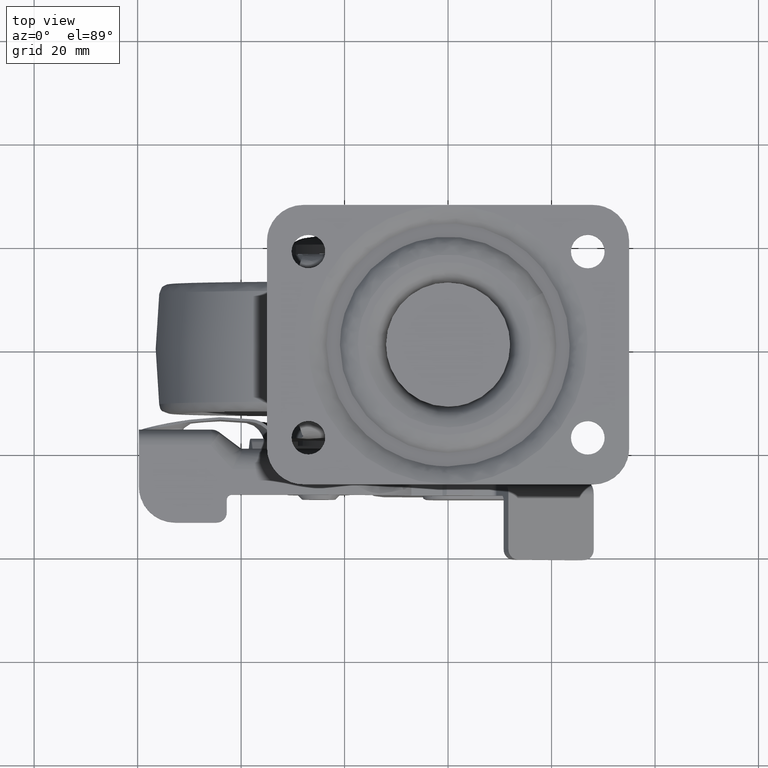
[diagram: clean part render]
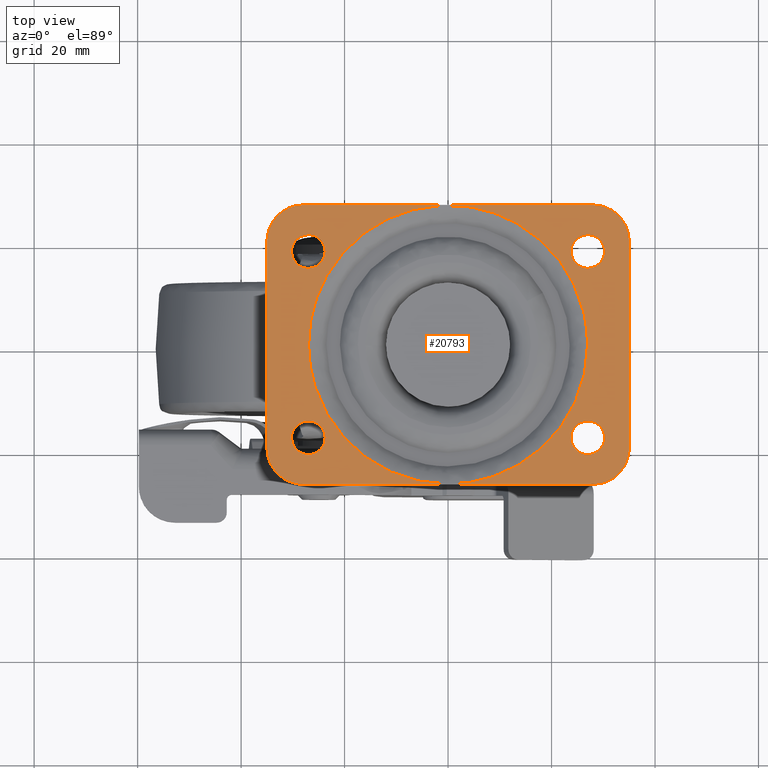
[diagram: same view with one face highlighted and labeled with its STEP entity id]
A machine part, top view. The second image highlights one B-rep face of the part: STEP entity #20793.
In plain terms, the highlighted face is a freeform B-spline surface patch.
Its self-contained STEP definition (entity closure, byte-faithful):
#18936=CARTESIAN_POINT('',(-29.098662013983120,20.481556148467931,2.411007E-011));
#18937=VERTEX_POINT('',#18936);
#18938=CARTESIAN_POINT('',(-30.250000000000000,18.0,0.0));
#18939=VERTEX_POINT('',#18938);
#18940=CARTESIAN_POINT('',(-29.098662013983120,20.481556148467931,2.411007E-011));
#18941=CARTESIAN_POINT('',(-29.435975121514989,20.197019072148791,2.134559E-011));
#18942=CARTESIAN_POINT('',(-29.861411885331290,19.653184710916801,1.606186E-011));
#18943=CARTESIAN_POINT('',(-30.188551572207150,18.764686713940691,7.429472E-012));
#18944=CARTESIAN_POINT('',(-30.250064970846822,18.264718474291040,2.571927E-012));
#18945=CARTESIAN_POINT('',(-30.250000000000000,18.0,0.0));
#18946=B_SPLINE_CURVE_WITH_KNOTS('',3,(#18940,#18941,#18942,#18943,#18944,#18945),.UNSPECIFIED.,.F.,.U.,(4,1,1,4),(0.000000032780604,1.323606410836319,2.029528632623908,2.823692085752946),.UNSPECIFIED.);
#18947=EDGE_CURVE('',#18937,#18939,#18946,.T.);
#18949=CARTESIAN_POINT('',(-26.999998023685411,14.750000000000600,0.0));
#18950=VERTEX_POINT('',#18949);
#18951=CARTESIAN_POINT('',(-30.250000000000000,18.0,0.0));
#18952=CARTESIAN_POINT('',(-30.250009369527781,17.787300965777661,0.0));
#18953=CARTESIAN_POINT('',(-30.197705253066719,17.255483680514409,0.0));
#18954=CARTESIAN_POINT('',(-29.953276100841521,16.572201316549091,0.0));
#18955=CARTESIAN_POINT('',(-29.560184505167779,15.968272788514740,0.0));
#18956=CARTESIAN_POINT('',(-29.099680306784681,15.484465543543280,0.0));
#18957=CARTESIAN_POINT('',(-28.520537887202899,15.097518226034770,0.0));
#18958=CARTESIAN_POINT('',(-27.797625543379802,14.818678978499131,0.0));
#18959=CARTESIAN_POINT('',(-27.292484887213021,14.749899991473630,0.0));
#18960=CARTESIAN_POINT('',(-26.999998023685411,14.750000000000600,0.0));
#18961=B_SPLINE_CURVE_WITH_KNOTS('',3,(#18951,#18952,#18953,#18954,#18955,#18956,#18957,#18958,#18959,#18960),.UNSPECIFIED.,.F.,.U.,(4,1,1,1,1,1,1,4),(0.000000130175467,0.638132101265308,1.595383198587425,2.153801844985761,2.791881960857556,3.589598457109945,4.227759827377444,5.105217283002371),.UNSPECIFIED.);
#18962=EDGE_CURVE('',#18939,#18950,#18961,.T.);
#18964=CARTESIAN_POINT('',(-23.750000000000000,18.0,0.0));
#18965=VERTEX_POINT('',#18964);
#18966=CARTESIAN_POINT('',(-26.999998023685411,14.750000000000600,0.0));
#18967=CARTESIAN_POINT('',(-26.707511638518518,14.749916395474340,0.0));
#18968=CARTESIAN_POINT('',(-26.228965239744490,14.815055345974690,0.0));
#18969=CARTESIAN_POINT('',(-25.503478534970618,15.084689072074809,0.0));
#18970=CARTESIAN_POINT('',(-24.918738735211701,15.465099771792261,0.0));
#18971=CARTESIAN_POINT('',(-24.421357598268070,15.987608902985000,0.0));
#18972=CARTESIAN_POINT('',(-24.078308945008938,16.529326794780200,0.0));
#18973=CARTESIAN_POINT('',(-23.818679715786899,17.202374695712901,0.0));
#18974=CARTESIAN_POINT('',(-23.749898858344821,17.707510889954889,0.0));
#18975=CARTESIAN_POINT('',(-23.750000000000000,18.0,0.0));
#18976=B_SPLINE_CURVE_WITH_KNOTS('',3,(#18966,#18967,#18968,#18969,#18970,#18971,#18972,#18973,#18974,#18975),.UNSPECIFIED.,.F.,.U.,(4,1,1,1,1,1,1,4),(0.000000132883857,0.877454849148513,1.435848134296763,2.313333049840735,2.951413440658941,3.589596891196172,4.227757981523486,5.105215055179643),.UNSPECIFIED.);
#18977=EDGE_CURVE('',#18950,#18965,#18976,.T.);
#18979=CARTESIAN_POINT('',(-24.642533730991470,20.237152114492190,-6.488299E-012));
#18980=VERTEX_POINT('',#18979);
#18981=CARTESIAN_POINT('',(-23.750000000000000,18.0,0.0));
#18982=CARTESIAN_POINT('',(-23.749970073258400,18.231323852694729,-6.708969E-013));
#18983=CARTESIAN_POINT('',(-23.802339721398191,18.719664242744201,-2.087206E-012));
#18984=CARTESIAN_POINT('',(-24.072348636473201,19.502709677085431,-4.358233E-012));
#18985=CARTESIAN_POINT('',(-24.412419689169489,19.994861619973641,-5.785597E-012));
#18986=CARTESIAN_POINT('',(-24.642533730991470,20.237152114492190,-6.488299E-012));
#18987=B_SPLINE_CURVE_WITH_KNOTS('',3,(#18981,#18982,#18983,#18984,#18985,#18986),.UNSPECIFIED.,.F.,.U.,(4,1,1,4),(0.000000048016924,0.693990344603692,1.465071409297912,2.467517016951442),.UNSPECIFIED.);
#18988=EDGE_CURVE('',#18965,#18980,#18987,.T.);
#19070=CARTESIAN_POINT('',(-27.000001976314579,21.249999999999389,0.0));
#19071=VERTEX_POINT('',#19070);
#19072=CARTESIAN_POINT('',(-27.000001976314579,21.249999999999389,0.0));
#19073=CARTESIAN_POINT('',(-27.356518502844640,21.250225261863669,4.095774E-012));
#19074=CARTESIAN_POINT('',(-28.116833163988979,21.123527920522729,1.283051E-011));
#19075=CARTESIAN_POINT('',(-28.790388938922209,20.742777522559280,2.056853E-011));
#19076=CARTESIAN_POINT('',(-29.098662013983120,20.481556148467931,2.411007E-011));
#19077=B_SPLINE_CURVE_WITH_KNOTS('',3,(#19072,#19073,#19074,#19075,#19076),.UNSPECIFIED.,.F.,.U.,(4,1,4),(0.000000046544645,1.069479835172767,2.281526819842900),.UNSPECIFIED.);
#19078=EDGE_CURVE('',#19071,#18937,#19077,.T.);
#19102=CARTESIAN_POINT('',(-24.642533730991470,20.237152114492190,-6.488299E-012));
#19103=CARTESIAN_POINT('',(-24.850502006177820,20.456467290193491,-5.915923E-012));
#19104=CARTESIAN_POINT('',(-25.263099812485201,20.784504189493369,-4.780358E-012));
#19105=CARTESIAN_POINT('',(-26.065969380748761,21.153877943759081,-2.570675E-012));
#19106=CARTESIAN_POINT('',(-26.642787019713939,21.250216907825621,-9.831387E-013));
#19107=CARTESIAN_POINT('',(-27.000001976314579,21.249999999999389,0.0));
#19108=B_SPLINE_CURVE_WITH_KNOTS('',3,(#19102,#19103,#19104,#19105,#19106,#19107),.UNSPECIFIED.,.F.,.U.,(4,1,1,4),(0.000000041691967,0.906719912648094,1.566123510374387,2.637701166660705),.UNSPECIFIED.);
#19109=EDGE_CURVE('',#18980,#19071,#19108,.T.);
#19140=CARTESIAN_POINT('',(-29.098662013983120,-15.518443851532060,2.411007E-011));
#19141=VERTEX_POINT('',#19140);
#19142=CARTESIAN_POINT('',(-30.250000000000000,-18.0,0.0));
#19143=VERTEX_POINT('',#19142);
#19144=CARTESIAN_POINT('',(-29.098662013983120,-15.518443851532060,2.411007E-011));
#19145=CARTESIAN_POINT('',(-29.345807513333440,-15.727270859242291,2.208117E-011));
#19146=CARTESIAN_POINT('',(-29.678780349831861,-16.107700559209650,1.838503E-011));
#19147=CARTESIAN_POINT('',(-30.122228806522781,-16.941498497305211,1.028409E-011));
#19148=CARTESIAN_POINT('',(-30.250568133515390,-17.558693553326350,4.287604E-012));
#19149=CARTESIAN_POINT('',(-30.250000000000000,-18.0,0.0));
#19150=B_SPLINE_CURVE_WITH_KNOTS('',3,(#19144,#19145,#19146,#19147,#19148,#19149),.UNSPECIFIED.,.F.,.U.,(4,1,1,4),(0.000000032780601,0.970644669832302,1.500085707788196,2.823692085752956),.UNSPECIFIED.);
#19151=EDGE_CURVE('',#19141,#19143,#19150,.T.);
#19153=CARTESIAN_POINT('',(-26.999998023685411,-21.249999999999400,0.0));
#19154=VERTEX_POINT('',#19153);
#19155=CARTESIAN_POINT('',(-30.250000000000000,-18.0,0.0));
#19156=CARTESIAN_POINT('',(-30.250189828656602,-18.345685374985120,0.0));
#19157=CARTESIAN_POINT('',(-30.164327565055270,-18.877321482790180,0.0));
#19158=CARTESIAN_POINT('',(-29.859330765155150,-19.588640095612799,0.0));
#19159=CARTESIAN_POINT('',(-29.405490925143042,-20.250633665652849,0.0));
#19160=CARTESIAN_POINT('',(-28.800640050369651,-20.746962856875658,0.0));
#19161=CARTESIAN_POINT('',(-27.956983273839271,-21.145890065077761,0.0));
#19162=CARTESIAN_POINT('',(-27.398896762059330,-21.250351134171900,0.0));
#19163=CARTESIAN_POINT('',(-26.999998023685411,-21.249999999999400,0.0));
#19164=B_SPLINE_CURVE_WITH_KNOTS('',3,(#19155,#19156,#19157,#19158,#19159,#19160,#19161,#19162,#19163),.UNSPECIFIED.,.F.,.U.,(4,1,1,1,1,1,4),(0.000000130178187,1.036988564667084,1.595383198589589,2.313334055526160,3.430066163216022,3.908685942198614,5.105217283002332),.UNSPECIFIED.);
#19165=EDGE_CURVE('',#19143,#19154,#19164,.T.);
#19167=CARTESIAN_POINT('',(-23.750000000000000,-18.0,0.0));
#19168=VERTEX_POINT('',#19167);
#19169=CARTESIAN_POINT('',(-26.999998023685411,-21.249999999999400,0.0));
#19170=CARTESIAN_POINT('',(-26.654325157627870,-21.250173482347510,0.0));
#19171=CARTESIAN_POINT('',(-25.989698139765281,-21.142959983774219,0.0));
#19172=CARTESIAN_POINT('',(-25.197413560756619,-20.744187037367290,0.0));
#19173=CARTESIAN_POINT('',(-24.631029585284551,-20.255442694325989,0.0));
#19174=CARTESIAN_POINT('',(-24.236540503340880,-19.749954656948869,0.0));
#19175=CARTESIAN_POINT('',(-23.864049450148858,-19.010172237932650,0.0));
#19176=CARTESIAN_POINT('',(-23.749642217159231,-18.398893144839331,0.0));
#19177=CARTESIAN_POINT('',(-23.750000000000000,-18.0,0.0));
#19178=B_SPLINE_CURVE_WITH_KNOTS('',3,(#19169,#19170,#19171,#19172,#19173,#19174,#19175,#19176,#19177),.UNSPECIFIED.,.F.,.U.,(4,1,1,1,1,1,4),(0.000000132885914,1.036988114522464,1.994257466603097,2.632361918074051,3.270510655247755,3.908684235775294,5.105215055179595),.UNSPECIFIED.);
#19179=EDGE_CURVE('',#19154,#19168,#19178,.T.);
#19181=CARTESIAN_POINT('',(-24.642533730991470,-15.762847885507810,-6.488299E-012));
#19182=VERTEX_POINT('',#19181);
#19183=CARTESIAN_POINT('',(-23.750000000000000,-18.0,0.0));
#19184=CARTESIAN_POINT('',(-23.749691217957700,-17.614412216913571,-1.118301E-012));
#19185=CARTESIAN_POINT('',(-23.898198580976690,-16.792187689257268,-3.502957E-012));
#19186=CARTESIAN_POINT('',(-24.341313808972000,-16.079488684971839,-5.569962E-012));
#19187=CARTESIAN_POINT('',(-24.642533730991470,-15.762847885507810,-6.488299E-012));
#19188=B_SPLINE_CURVE_WITH_KNOTS('',3,(#19183,#19184,#19185,#19186,#19187),.UNSPECIFIED.,.F.,.U.,(4,1,4),(0.000000048017326,1.156659548464160,2.467517016951447),.UNSPECIFIED.);
#19189=EDGE_CURVE('',#19168,#19182,#19188,.T.);
#19269=CARTESIAN_POINT('',(-27.000001976314579,-14.750000000000600,0.0));
#19270=VERTEX_POINT('',#19269);
#19271=CARTESIAN_POINT('',(-27.000001976314579,-14.750000000000600,0.0));
#19272=CARTESIAN_POINT('',(-27.261424441707469,-14.749943368808330,3.003303E-012));
#19273=CARTESIAN_POINT('',(-27.808020724700711,-14.816274535109979,9.282774E-012));
#19274=CARTESIAN_POINT('',(-28.522383700906801,-15.095733623609791,1.748960E-011));
#19275=CARTESIAN_POINT('',(-28.935354155752929,-15.380320788946911,2.223394E-011));
#19276=CARTESIAN_POINT('',(-29.098662013983120,-15.518443851532060,2.411007E-011));
#19277=B_SPLINE_CURVE_WITH_KNOTS('',3,(#19271,#19272,#19273,#19274,#19275,#19276),.UNSPECIFIED.,.F.,.U.,(4,1,1,4),(0.000000046544931,0.784277085109643,1.639844173134363,2.281526819842903),.UNSPECIFIED.);
#19278=EDGE_CURVE('',#19270,#19141,#19277,.T.);
#19301=CARTESIAN_POINT('',(-24.642533730991470,-15.762847885507810,-6.488299E-012));
#19302=CARTESIAN_POINT('',(-24.925978875126329,-15.463570453116761,-5.708193E-012));
#19303=CARTESIAN_POINT('',(-25.472214348900660,-15.073311437917861,-4.204827E-012));
#19304=CARTESIAN_POINT('',(-26.313134517435259,-14.797551460180721,-1.890419E-012));
#19305=CARTESIAN_POINT('',(-26.780198198625229,-14.749978489500959,-6.049511E-013));
#19306=CARTESIAN_POINT('',(-27.000001976314579,-14.750000000000600,0.0));
#19307=B_SPLINE_CURVE_WITH_KNOTS('',3,(#19301,#19302,#19303,#19304,#19305,#19306),.UNSPECIFIED.,.F.,.U.,(4,1,1,4),(0.000000041691413,1.236428381829834,1.978275885379313,2.637701166660706),.UNSPECIFIED.);
#19308=EDGE_CURVE('',#19182,#19270,#19307,.T.);
#19339=CARTESIAN_POINT('',(24.901337986016880,20.481556148467931,2.411007E-011));
#19340=VERTEX_POINT('',#19339);
#19341=CARTESIAN_POINT('',(23.750000000000000,18.0,0.0));
#19342=VERTEX_POINT('',#19341);
#19343=CARTESIAN_POINT('',(24.901337986016880,20.481556148467931,2.411007E-011));
#19344=CARTESIAN_POINT('',(24.564022460995879,20.197018604657728,2.134559E-011));
#19345=CARTESIAN_POINT('',(24.138589120352410,19.653185514379992,1.606187E-011));
#19346=CARTESIAN_POINT('',(23.811448734057080,18.764685928792229,7.429464E-012));
#19347=CARTESIAN_POINT('',(23.749934318764939,18.264720624976022,2.571948E-012));
#19348=CARTESIAN_POINT('',(23.750000000000000,18.0,0.0));
#19349=B_SPLINE_CURVE_WITH_KNOTS('',3,(#19343,#19344,#19345,#19346,#19347,#19348),.UNSPECIFIED.,.F.,.U.,(4,1,1,4),(0.000000032779804,1.323606410835987,2.029528632623781,2.823692085752959),.UNSPECIFIED.);
#19350=EDGE_CURVE('',#19340,#19342,#19349,.T.);
#19352=CARTESIAN_POINT('',(27.000001976314589,14.750000000000600,0.0));
#19353=VERTEX_POINT('',#19352);
#19354=CARTESIAN_POINT('',(23.750000000000000,18.0,0.0));
#19355=CARTESIAN_POINT('',(23.749785742482722,17.654313070926399,0.0));
#19356=CARTESIAN_POINT('',(23.835685242893430,17.122675416487159,0.0));
#19357=CARTESIAN_POINT('',(24.119629024145329,16.460392464895872,0.0));
#19358=CARTESIAN_POINT('',(24.439792598384791,15.968266902210610,0.0));
#19359=CARTESIAN_POINT('',(24.900318657338751,15.484464106681830,0.0));
#19360=CARTESIAN_POINT('',(25.479462560658700,15.097518527033399,0.0));
#19361=CARTESIAN_POINT('',(26.202374749242381,14.818678973484490,0.0));
#19362=CARTESIAN_POINT('',(26.707514224890890,14.749900529780071,0.0));
#19363=CARTESIAN_POINT('',(27.000001976314589,14.750000000000600,0.0));
#19364=B_SPLINE_CURVE_WITH_KNOTS('',3,(#19354,#19355,#19356,#19357,#19358,#19359,#19360,#19361,#19362,#19363),.UNSPECIFIED.,.F.,.U.,(4,1,1,1,1,1,1,4),(0.000000130172612,1.036988564662533,1.595383198585566,2.153801844984451,2.791881960856835,3.589598457109791,4.227759827377511,5.105217283002343),.UNSPECIFIED.);
#19365=EDGE_CURVE('',#19342,#19353,#19364,.T.);
#19367=CARTESIAN_POINT('',(30.250000000000000,18.0,0.0));
#19368=VERTEX_POINT('',#19367);
#19369=CARTESIAN_POINT('',(27.000001976314589,14.750000000000600,0.0));
#19370=CARTESIAN_POINT('',(27.345682761433391,14.749817411182120,0.0));
#19371=CARTESIAN_POINT('',(27.877327830376590,14.835660365938519,0.0));
#19372=CARTESIAN_POINT('',(28.637733930806601,15.161656110361641,0.0));
#19373=CARTESIAN_POINT('',(29.333759524556630,15.664476262515540,0.0));
#19374=CARTESIAN_POINT('',(29.864196628146981,16.379655906437598,0.0));
#19375=CARTESIAN_POINT('',(30.181293176133469,17.202391288927831,0.0));
#19376=CARTESIAN_POINT('',(30.250097775256510,17.707513800674519,0.0));
#19377=CARTESIAN_POINT('',(30.250000000000000,18.0,0.0));
#19378=B_SPLINE_CURVE_WITH_KNOTS('',3,(#19369,#19370,#19371,#19372,#19373,#19374,#19375,#19376,#19377),.UNSPECIFIED.,.F.,.U.,(4,1,1,1,1,1,4),(0.000000132886476,1.036988114523123,1.595382504896750,2.472852463183898,3.589596891197049,4.227757981524018,5.105215055179590),.UNSPECIFIED.);
#19379=EDGE_CURVE('',#19353,#19368,#19378,.T.);
#19381=CARTESIAN_POINT('',(29.357466269008530,20.237152114492190,-6.488299E-012));
#19382=VERTEX_POINT('',#19381);
#19383=CARTESIAN_POINT('',(30.250000000000000,18.0,0.0));
#19384=CARTESIAN_POINT('',(30.250029856586529,18.231324300618649,-6.708982E-013));
#19385=CARTESIAN_POINT('',(30.197660239921699,18.719663100274609,-2.087203E-012));
#19386=CARTESIAN_POINT('',(29.927651257859399,19.502710449078549,-4.358235E-012));
#19387=CARTESIAN_POINT('',(29.587580694526672,19.994861516565180,-5.785596E-012));
#19388=CARTESIAN_POINT('',(29.357466269008530,20.237152114492190,-6.488299E-012));
#19389=B_SPLINE_CURVE_WITH_KNOTS('',3,(#19383,#19384,#19385,#19386,#19387,#19388),.UNSPECIFIED.,.F.,.U.,(4,1,1,4),(0.000000048017676,0.693990344604234,1.465071409298134,2.467517016951434),.UNSPECIFIED.);
#19390=EDGE_CURVE('',#19368,#19382,#19389,.T.);
#19471=CARTESIAN_POINT('',(26.999998023685428,21.249999999999389,0.0));
#19472=VERTEX_POINT('',#19471);
#19473=CARTESIAN_POINT('',(26.999998023685428,21.249999999999389,0.0));
#19474=CARTESIAN_POINT('',(26.738573166154520,21.250056779422149,3.003331E-012));
#19475=CARTESIAN_POINT('',(26.287067377070102,21.195212425445391,8.190372E-012));
#19476=CARTESIAN_POINT('',(25.564579379021300,20.948529683029019,1.649054E-011));
#19477=CARTESIAN_POINT('',(25.137181723022749,20.681155010884840,2.140062E-011));
#19478=CARTESIAN_POINT('',(24.901337986016880,20.481556148467931,2.411007E-011));
#19479=B_SPLINE_CURVE_WITH_KNOTS('',3,(#19473,#19474,#19475,#19476,#19477,#19478),.UNSPECIFIED.,.F.,.U.,(4,1,1,4),(0.000000046544629,0.784277085109396,1.354640644363460,2.281526819842901),.UNSPECIFIED.);
#19480=EDGE_CURVE('',#19472,#19340,#19479,.T.);
#19504=CARTESIAN_POINT('',(29.357466269008530,20.237152114492190,-6.488299E-012));
#19505=CARTESIAN_POINT('',(29.149489756148640,20.456459216243552,-5.915900E-012));
#19506=CARTESIAN_POINT('',(28.693502140134669,20.819097464550730,-4.660917E-012));
#19507=CARTESIAN_POINT('',(27.879156536899071,21.168919024054031,-2.419649E-012));
#19508=CARTESIAN_POINT('',(27.302242190031329,21.250121078032009,-8.318463E-013));
#19509=CARTESIAN_POINT('',(26.999998023685428,21.249999999999389,0.0));
#19510=B_SPLINE_CURVE_WITH_KNOTS('',3,(#19504,#19505,#19506,#19507,#19508,#19509),.UNSPECIFIED.,.F.,.U.,(4,1,1,4),(0.000000041691718,0.906719912648074,1.730981295650681,2.637701166660704),.UNSPECIFIED.);
#19511=EDGE_CURVE('',#19382,#19472,#19510,.T.);
#19542=CARTESIAN_POINT('',(24.901337986016880,-15.518443851532069,2.410980E-011));
#19543=VERTEX_POINT('',#19542);
#19544=CARTESIAN_POINT('',(23.750000000000000,-18.0,0.0));
#19545=VERTEX_POINT('',#19544);
#19546=CARTESIAN_POINT('',(24.901337986016880,-15.518443851532069,2.410980E-011));
#19547=CARTESIAN_POINT('',(24.564049665951281,-15.802980071688960,2.134536E-011));
#19548=CARTESIAN_POINT('',(24.101519596560120,-16.394101533586621,1.560226E-011));
#19549=CARTESIAN_POINT('',(23.797604546830360,-17.294093684134641,6.858301E-012));
#19550=CARTESIAN_POINT('',(23.749994923483172,-17.794114012731882,2.000305E-012));
#19551=CARTESIAN_POINT('',(23.750000000000000,-18.0,0.0));
#19552=B_SPLINE_CURVE_WITH_KNOTS('',3,(#19546,#19547,#19548,#19549,#19550,#19551),.UNSPECIFIED.,.F.,.U.,(4,1,1,4),(0.000000032782069,1.323606410836959,2.206009512406765,2.823692085752946),.UNSPECIFIED.);
#19553=EDGE_CURVE('',#19543,#19545,#19552,.T.);
#19555=CARTESIAN_POINT('',(27.000001976314589,-21.249999999999389,0.0));
#19556=VERTEX_POINT('',#19555);
#19557=CARTESIAN_POINT('',(23.750000000000000,-18.0,0.0));
#19558=CARTESIAN_POINT('',(23.749539109395830,-18.425517321268259,0.0));
#19559=CARTESIAN_POINT('',(23.866513435822320,-19.010111152781871,0.0));
#19560=CARTESIAN_POINT('',(24.238257720426361,-19.748346059224520,0.0));
#19561=CARTESIAN_POINT('',(24.610774591370909,-20.238013777739130,0.0));
#19562=CARTESIAN_POINT('',(25.116550573767789,-20.674280522653920,0.0));
#19563=CARTESIAN_POINT('',(25.627977368913911,-20.963983828308709,0.0));
#19564=CARTESIAN_POINT('',(26.255558981979359,-21.188540772674010,0.0));
#19565=CARTESIAN_POINT('',(26.707509342070122,-21.250107669726422,0.0));
#19566=CARTESIAN_POINT('',(27.000001976314589,-21.249999999999389,0.0));
#19567=B_SPLINE_CURVE_WITH_KNOTS('',3,(#19557,#19558,#19559,#19560,#19561,#19562,#19563,#19564,#19565,#19566),.UNSPECIFIED.,.F.,.U.,(4,1,1,1,1,1,1,4),(0.000000130174017,1.276304901481341,1.754930481418421,2.472853536968516,3.110959513207545,3.749140048125455,4.227759827377623,5.105217283002375),.UNSPECIFIED.);
#19568=EDGE_CURVE('',#19545,#19556,#19567,.T.);
#19570=CARTESIAN_POINT('',(30.250000000000000,-18.0,0.0));
#19571=VERTEX_POINT('',#19570);
#19572=CARTESIAN_POINT('',(27.000001976314589,-21.249999999999389,0.0));
#19573=CARTESIAN_POINT('',(27.345675269564850,-21.250197662489999,0.0));
#19574=CARTESIAN_POINT('',(28.010311827942282,-21.142935297518719,0.0));
#19575=CARTESIAN_POINT('',(28.802542296396830,-20.744166622463592,0.0));
#19576=CARTESIAN_POINT('',(29.450010658485830,-20.185713915961699,0.0));
#19577=CARTESIAN_POINT('',(29.883294867451959,-19.570418447118371,0.0));
#19578=CARTESIAN_POINT('',(30.181311612339059,-18.797618903095529,0.0));
#19579=CARTESIAN_POINT('',(30.250101356567910,-18.292488888214621,0.0));
#19580=CARTESIAN_POINT('',(30.250000000000000,-18.0,0.0));
#19581=B_SPLINE_CURVE_WITH_KNOTS('',3,(#19572,#19573,#19574,#19575,#19576,#19577,#19578,#19579,#19580),.UNSPECIFIED.,.F.,.U.,(4,1,1,1,1,1,4),(0.000000132882087,1.036988114519651,1.994257466601198,2.632361918072711,3.589596891195971,4.227757981523316,5.105215055179643),.UNSPECIFIED.);
#19582=EDGE_CURVE('',#19556,#19571,#19581,.T.);
#19584=CARTESIAN_POINT('',(29.357466269008530,-15.762847885507810,-6.488306E-012));
#19585=VERTEX_POINT('',#19584);
#19586=CARTESIAN_POINT('',(30.250000000000000,-18.0,0.0));
#19587=CARTESIAN_POINT('',(30.250309667202629,-17.614411436126410,-1.118304E-012));
#19588=CARTESIAN_POINT('',(30.101802139097291,-16.792188037043971,-3.502960E-012));
#19589=CARTESIAN_POINT('',(29.658684485442201,-16.079488542710489,-5.569969E-012));
#19590=CARTESIAN_POINT('',(29.357466269008530,-15.762847885507810,-6.488306E-012));
#19591=B_SPLINE_CURVE_WITH_KNOTS('',3,(#19586,#19587,#19588,#19589,#19590),.UNSPECIFIED.,.F.,.U.,(4,1,4),(0.000000048017035,1.156659548464136,2.467517016951446),.UNSPECIFIED.);
#19592=EDGE_CURVE('',#19571,#19585,#19591,.T.);
#19672=CARTESIAN_POINT('',(26.999998023685428,-14.750000000000600,0.0));
#19673=VERTEX_POINT('',#19672);
#19674=CARTESIAN_POINT('',(26.999998023685428,-14.750000000000600,0.0));
#19675=CARTESIAN_POINT('',(26.643486060418510,-14.749799515815431,4.095675E-012));
#19676=CARTESIAN_POINT('',(25.883158763495640,-14.876434103648030,1.283046E-011));
#19677=CARTESIAN_POINT('',(25.209614340643320,-15.257235800922290,2.056826E-011));
#19678=CARTESIAN_POINT('',(24.901337986016880,-15.518443851532069,2.410980E-011));
#19679=B_SPLINE_CURVE_WITH_KNOTS('',3,(#19674,#19675,#19676,#19677,#19678),.UNSPECIFIED.,.F.,.U.,(4,1,4),(0.000000046545003,1.069479835172948,2.281526819842915),.UNSPECIFIED.);
#19680=EDGE_CURVE('',#19673,#19543,#19679,.T.);
#19704=CARTESIAN_POINT('',(29.357466269008530,-15.762847885507810,-6.488306E-012));
#19705=CARTESIAN_POINT('',(29.111737999354482,-15.503586212710010,-5.812005E-012));
#19706=CARTESIAN_POINT('',(28.578116261436239,-15.101103030838351,-4.343353E-012));
#19707=CARTESIAN_POINT('',(27.741839060785800,-14.803081048030910,-2.041721E-012));
#19708=CARTESIAN_POINT('',(27.219797703725810,-14.749981408437250,-6.049405E-013));
#19709=CARTESIAN_POINT('',(26.999998023685428,-14.750000000000600,0.0));
#19710=B_SPLINE_CURVE_WITH_KNOTS('',3,(#19704,#19705,#19706,#19707,#19708,#19709),.UNSPECIFIED.,.F.,.U.,(4,1,1,4),(0.000000041692346,1.071577697969752,1.978275885379452,2.637701166660695),.UNSPECIFIED.);
#19711=EDGE_CURVE('',#19585,#19673,#19710,.T.);
#20216=CARTESIAN_POINT('',(-23.463721929436009,13.285945149702910,-3.123845E-012));
#20217=VERTEX_POINT('',#20216);
#20228=CARTESIAN_POINT('',(-26.964101615137750,0.0,0.0));
#20229=VERTEX_POINT('',#20228);
#20230=CARTESIAN_POINT('',(-26.964101615137750,0.0,0.0));
#20231=CARTESIAN_POINT('',(-26.964376938501260,1.808939636004065,-3.977022E-013));
#20232=CARTESIAN_POINT('',(-26.649763442268071,4.920159724618062,-1.099967E-012));
#20233=CARTESIAN_POINT('',(-25.394706249793259,9.390316009306750,-2.155488E-012));
#20234=CARTESIAN_POINT('',(-24.212527946907400,11.963762168178199,-2.789771E-012));
#20235=CARTESIAN_POINT('',(-23.463721929436009,13.285945149702910,-3.123845E-012));
#20236=B_SPLINE_CURVE_WITH_KNOTS('',3,(#20230,#20231,#20232,#20233,#20234,#20235),.UNSPECIFIED.,.F.,.U.,(4,1,1,4),(7.957814E-009,5.426765222866234,9.334024984201815,13.892509590251670),.UNSPECIFIED.);
#20237=EDGE_CURVE('',#20229,#20217,#20236,.T.);
#20239=CARTESIAN_POINT('',(-0.000001402923582,-26.964101615137711,0.0));
#20240=VERTEX_POINT('',#20239);
#20241=CARTESIAN_POINT('',(-0.000001402923582,-26.964101615137711,0.0));
#20242=CARTESIAN_POINT('',(-1.985439990888531,-26.964507047240410,0.0));
#20243=CARTESIAN_POINT('',(-4.742754721083084,-26.658115685390779,0.0));
#20244=CARTESIAN_POINT('',(-8.632966910792739,-25.607124260436290,0.0));
#20245=CARTESIAN_POINT('',(-11.819626857589490,-24.344152055624701,0.0));
#20246=CARTESIAN_POINT('',(-15.697495591673130,-22.100148080679489,0.0));
#20247=CARTESIAN_POINT('',(-18.997357248189040,-19.306297736449810,0.0));
#20248=CARTESIAN_POINT('',(-21.433749017359379,-16.446040568537569,0.0));
#20249=CARTESIAN_POINT('',(-23.517223352291978,-13.389636559732219,0.0));
#20250=CARTESIAN_POINT('',(-25.145690872058790,-10.052986893748599,0.0));
#20251=CARTESIAN_POINT('',(-26.589161285570189,-5.294164031171176,0.0));
#20252=CARTESIAN_POINT('',(-26.964568613071052,-2.095754925146269,0.0));
#20253=CARTESIAN_POINT('',(-26.964101615137750,0.0,0.0));
#20254=B_SPLINE_CURVE_WITH_KNOTS('',3,(#20241,#20242,#20243,#20244,#20245,#20246,#20247,#20248,#20249,#20250,#20251,#20252,#20253),.UNSPECIFIED.,.F.,.U.,(4,1,1,1,1,1,1,1,1,1,4),(0.000000079796962,5.956190109911624,8.272495562527290,12.077852870231190,16.214124881631861,21.673932515717571,24.982927923463929,27.464661263130449,32.759084043836907,36.068086878578058,42.355177424549339),.UNSPECIFIED.);
#20255=EDGE_CURVE('',#20240,#20229,#20254,.T.);
#20257=CARTESIAN_POINT('',(26.964101615137750,0.0,0.0));
#20258=VERTEX_POINT('',#20257);
#20259=CARTESIAN_POINT('',(26.964101615137750,0.0,0.0));
#20260=CARTESIAN_POINT('',(26.964196906333949,-1.378753020237646,0.0));
#20261=CARTESIAN_POINT('',(26.786024911120322,-3.695013746422065,0.0));
#20262=CARTESIAN_POINT('',(26.098448991208659,-6.992823373121217,0.0));
#20263=CARTESIAN_POINT('',(25.222872739291020,-9.670747320750015,0.0));
#20264=CARTESIAN_POINT('',(23.961347870477731,-12.493345128448819,0.0));
#20265=CARTESIAN_POINT('',(22.330063255017119,-15.253288735553760,0.0));
#20266=CARTESIAN_POINT('',(20.213747353964621,-17.947963540003592,0.0));
#20267=CARTESIAN_POINT('',(17.980325324539191,-20.167687025323669,0.0));
#20268=CARTESIAN_POINT('',(15.343839804408290,-22.264642439264190,0.0));
#20269=CARTESIAN_POINT('',(12.360435907463531,-24.065290197666759,0.0));
#20270=CARTESIAN_POINT('',(8.952721273388463,-25.513664736737041,0.0));
#20271=CARTESIAN_POINT('',(4.908212797346167,-26.646323660188330,0.0));
#20272=CARTESIAN_POINT('',(1.875117793442987,-26.964434291919471,0.0));
#20273=CARTESIAN_POINT('',(-0.000001402923582,-26.964101615137711,0.0));
#20274=B_SPLINE_CURVE_WITH_KNOTS('',3,(#20259,#20260,#20261,#20262,#20263,#20264,#20265,#20266,#20267,#20268,#20269,#20270,#20271,#20272,#20273),.UNSPECIFIED.,.F.,.U.,(4,1,1,1,1,1,1,1,1,1,1,1,4),(0.000000079755772,4.136245370686254,6.948889205081770,10.092445357085589,12.574206363970760,16.214125486963901,19.688559259669528,22.832039515478058,25.644702823062879,29.780975248394491,33.255436928105148,36.729910114084852,42.355179005973497),.UNSPECIFIED.);
#20275=EDGE_CURVE('',#20258,#20240,#20274,.T.);
#20277=CARTESIAN_POINT('',(13.285945149702901,23.463721929436009,-3.123845E-012));
#20278=VERTEX_POINT('',#20277);
#20279=CARTESIAN_POINT('',(13.285945149702901,23.463721929436009,-3.123845E-012));
#20280=CARTESIAN_POINT('',(14.963116571921370,22.514443572924510,-2.932366E-012));
#20281=CARTESIAN_POINT('',(17.627732436675700,20.601640001425530,-2.587946E-012));
#20282=CARTESIAN_POINT('',(21.083483764208250,17.016015258845730,-2.031474E-012));
#20283=CARTESIAN_POINT('',(23.388573076773220,13.631390809609940,-1.561629E-012));
#20284=CARTESIAN_POINT('',(24.923464626872811,10.415081759250700,-1.153123E-012));
#20285=CARTESIAN_POINT('',(26.019196476302199,7.339728457099414,-7.840628E-013));
#20286=CARTESIAN_POINT('',(26.776756040555160,3.928429852656868,-4.012092E-013));
#20287=CARTESIAN_POINT('',(26.964151948178650,1.260059492520393,-1.252057E-013));
#20288=CARTESIAN_POINT('',(26.964101615137750,0.0,0.0));
#20289=B_SPLINE_CURVE_WITH_KNOTS('',3,(#20279,#20280,#20281,#20282,#20283,#20284,#20285,#20286,#20287,#20288),.UNSPECIFIED.,.F.,.U.,(4,1,1,1,1,1,1,4),(0.000000028778882,5.781482372825931,9.784070419012938,14.898418621277980,18.011546205222249,20.457576923403110,24.682530446488698,28.462717758214779),.UNSPECIFIED.);
#20290=EDGE_CURVE('',#20278,#20258,#20289,.T.);
#20338=CARTESIAN_POINT('',(-23.463721929436009,13.285945149702910,-3.123845E-012));
#20339=CARTESIAN_POINT('',(-22.594375627633202,14.821784596876940,-3.123845E-012));
#20340=CARTESIAN_POINT('',(-20.999016994621680,17.087160395097449,-3.123845E-012));
#20341=CARTESIAN_POINT('',(-18.086499953801280,20.110226124292382,-3.123845E-012));
#20342=CARTESIAN_POINT('',(-15.482525794744710,22.169014323480539,-3.123845E-012));
#20343=CARTESIAN_POINT('',(-12.404400863606989,24.014751358837579,-3.123845E-012));
#20344=CARTESIAN_POINT('',(-9.224783754493242,25.436686641030569,-3.123845E-012));
#20345=CARTESIAN_POINT('',(-5.553849674073269,26.477594346114099,-3.123845E-012));
#20346=CARTESIAN_POINT('',(-1.500789820324333,27.028923884047870,-3.123845E-012));
#20347=CARTESIAN_POINT('',(2.926790139934020,26.948443076685962,-3.123845E-012));
#20348=CARTESIAN_POINT('',(8.087382480248008,25.922884655503530,-3.123845E-012));
#20349=CARTESIAN_POINT('',(11.510480663702131,24.469555763966198,-3.123845E-012));
#20350=CARTESIAN_POINT('',(13.285945149702901,23.463721929436009,-3.123845E-012));
#20351=B_SPLINE_CURVE_WITH_KNOTS('',3,(#20338,#20339,#20340,#20341,#20342,#20343,#20344,#20345,#20346,#20347,#20348,#20349,#20350),.UNSPECIFIED.,.F.,.U.,(4,1,1,1,1,1,1,1,1,1,4),(0.000000079545813,5.294366259171376,8.272494415683639,12.574204151691580,15.221414169921310,19.026785835011228,22.997505670743031,26.637406528254591,31.270028850923659,36.233550659921818,42.355171554741993),.UNSPECIFIED.);
#20352=EDGE_CURVE('',#20217,#20278,#20351,.T.);
#20657=CARTESIAN_POINT('',(-38.496499864326417,29.697299895337519,0.0));
#20658=CARTESIAN_POINT('',(38.496501741872727,29.697299895337519,0.0));
#20659=CARTESIAN_POINT('',(-38.496499864326417,-29.697301343730391,0.0));
#20660=CARTESIAN_POINT('',(38.496501741872727,-29.697301343730391,0.0));
#20661=B_SPLINE_SURFACE_WITH_KNOTS('',1,1,((#20657,#20659),(#20658,#20660)),.UNSPECIFIED.,.F.,.F.,.U.,(2,2),(2,2),(0.0,76.993001606199158),(0.0,59.394601239067910),.UNSPECIFIED.);
#20662=CARTESIAN_POINT('',(28.0,27.0,0.0));
#20663=VERTEX_POINT('',#20662);
#20664=CARTESIAN_POINT('',(-28.0,27.0,0.0));
#20665=VERTEX_POINT('',#20664);
#20666=CARTESIAN_POINT('',(28.0,27.0,0.0));
#20667=CARTESIAN_POINT('',(-28.0,27.0,0.0));
#20668=QUASI_UNIFORM_CURVE('',1,(#20666,#20667),.UNSPECIFIED.,.F.,.U.);
#20669=EDGE_CURVE('',#20663,#20665,#20668,.T.);
#20670=ORIENTED_EDGE('',*,*,#20669,.T.);
#20671=CARTESIAN_POINT('',(-35.0,20.0,0.0));
#20672=VERTEX_POINT('',#20671);
#20673=CARTESIAN_POINT('',(-28.0,27.0,0.0));
#20674=CARTESIAN_POINT('',(-28.544055127898559,27.000121905513861,0.0));
#20675=CARTESIAN_POINT('',(-29.546189630045010,26.882542547652829,0.0));
#20676=CARTESIAN_POINT('',(-31.042677137327669,26.367854113162441,0.0));
#20677=CARTESIAN_POINT('',(-32.270740297014463,25.611109866194170,0.0));
#20678=CARTESIAN_POINT('',(-33.248960618609772,24.679584823146751,0.0));
#20679=CARTESIAN_POINT('',(-34.077278993877933,23.577261556269320,0.0));
#20680=CARTESIAN_POINT('',(-34.796108982373653,22.032841903918641,0.0));
#20681=CARTESIAN_POINT('',(-35.000374791089989,20.715902793722030,0.0));
#20682=CARTESIAN_POINT('',(-35.0,20.0,0.0));
#20683=B_SPLINE_CURVE_WITH_KNOTS('',3,(#20673,#20674,#20675,#20676,#20677,#20678,#20679,#20680,#20681,#20682),.UNSPECIFIED.,.F.,.U.,(4,1,1,1,1,1,1,4),(0.000000165207545,1.632141269065832,3.006623481166262,4.724693676437550,5.927293953826124,7.044074544517173,8.848070245365795,10.995643280139330),.UNSPECIFIED.);
#20684=EDGE_CURVE('',#20665,#20672,#20683,.T.);
#20685=ORIENTED_EDGE('',*,*,#20684,.T.);
#20686=CARTESIAN_POINT('',(-35.0,-20.0,0.0));
#20687=VERTEX_POINT('',#20686);
#20688=CARTESIAN_POINT('',(-35.0,20.0,0.0));
#20689=CARTESIAN_POINT('',(-35.0,-20.0,0.0));
#20690=QUASI_UNIFORM_CURVE('',1,(#20688,#20689),.UNSPECIFIED.,.F.,.U.);
#20691=EDGE_CURVE('',#20672,#20687,#20690,.T.);
#20692=ORIENTED_EDGE('',*,*,#20691,.T.);
#20693=CARTESIAN_POINT('',(-28.0,-27.0,0.0));
#20694=VERTEX_POINT('',#20693);
#20695=CARTESIAN_POINT('',(-35.0,-20.0,0.0));
#20696=CARTESIAN_POINT('',(-35.000045368656899,-20.486772412559780,0.0));
#20697=CARTESIAN_POINT('',(-34.883173049771571,-21.603545927393899,0.0));
#20698=CARTESIAN_POINT('',(-34.367321912676452,-23.045502722759888,0.0));
#20699=CARTESIAN_POINT('',(-33.629045935801379,-24.210901502167449,0.0));
#20700=CARTESIAN_POINT('',(-32.887329960328302,-25.049759084314761,0.0));
#20701=CARTESIAN_POINT('',(-32.003636835377733,-25.784140221527100,0.0));
#20702=CARTESIAN_POINT('',(-30.881675196638120,-26.428909226198108,0.0));
#20703=CARTESIAN_POINT('',(-29.517585925088010,-26.888829196767951,0.0));
#20704=CARTESIAN_POINT('',(-28.515420764659090,-27.000080290463959,0.0));
#20705=CARTESIAN_POINT('',(-28.0,-27.0,0.0));
#20706=B_SPLINE_CURVE_WITH_KNOTS('',3,(#20695,#20696,#20697,#20698,#20699,#20700,#20701,#20702,#20703,#20704,#20705),.UNSPECIFIED.,.F.,.U.,(4,1,1,1,1,1,1,1,4),(0.000000165207087,1.460342821197441,3.350248930943396,4.552918930703197,5.583675335854586,6.700442014693551,7.989020974710094,9.449390454088338,10.995643280139310),.UNSPECIFIED.);
#20707=EDGE_CURVE('',#20687,#20694,#20706,.T.);
#20708=ORIENTED_EDGE('',*,*,#20707,.T.);
#20709=CARTESIAN_POINT('',(28.0,-27.0,0.0));
#20710=VERTEX_POINT('',#20709);
#20711=CARTESIAN_POINT('',(-28.0,-27.0,0.0));
#20712=CARTESIAN_POINT('',(28.0,-27.0,0.0));
#20713=QUASI_UNIFORM_CURVE('',1,(#20711,#20712),.UNSPECIFIED.,.F.,.U.);
#20714=EDGE_CURVE('',#20694,#20710,#20713,.T.);
#20715=ORIENTED_EDGE('',*,*,#20714,.T.);
#20716=CARTESIAN_POINT('',(35.0,-20.0,0.0));
#20717=VERTEX_POINT('',#20716);
#20718=CARTESIAN_POINT('',(28.0,-27.0,0.0));
#20719=CARTESIAN_POINT('',(28.544055127898559,-27.000121905513861,0.0));
#20720=CARTESIAN_POINT('',(29.546189630045010,-26.882542547652829,0.0));
#20721=CARTESIAN_POINT('',(31.042677137327669,-26.367854113162441,0.0));
#20722=CARTESIAN_POINT('',(32.270740297014463,-25.611109866194170,0.0));
#20723=CARTESIAN_POINT('',(33.248960618609772,-24.679584823146751,0.0));
#20724=CARTESIAN_POINT('',(34.077278993877933,-23.577261556269320,0.0));
#20725=CARTESIAN_POINT('',(34.796108982373653,-22.032841903918641,0.0));
#20726=CARTESIAN_POINT('',(35.000374791089989,-20.715902793722030,0.0));
#20727=CARTESIAN_POINT('',(35.0,-20.0,0.0));
#20728=B_SPLINE_CURVE_WITH_KNOTS('',3,(#20718,#20719,#20720,#20721,#20722,#20723,#20724,#20725,#20726,#20727),.UNSPECIFIED.,.F.,.U.,(4,1,1,1,1,1,1,4),(0.000000165207545,1.632141269065832,3.006623481166262,4.724693676437550,5.927293953826124,7.044074544517173,8.848070245365795,10.995643280139330),.UNSPECIFIED.);
#20729=EDGE_CURVE('',#20710,#20717,#20728,.T.);
#20730=ORIENTED_EDGE('',*,*,#20729,.T.);
#20731=CARTESIAN_POINT('',(35.0,20.0,0.0));
#20732=VERTEX_POINT('',#20731);
#20733=CARTESIAN_POINT('',(35.0,-20.0,0.0));
#20734=CARTESIAN_POINT('',(35.0,20.0,0.0));
#20735=QUASI_UNIFORM_CURVE('',1,(#20733,#20734),.UNSPECIFIED.,.F.,.U.);
#20736=EDGE_CURVE('',#20717,#20732,#20735,.T.);
#20737=ORIENTED_EDGE('',*,*,#20736,.T.);
#20738=CARTESIAN_POINT('',(35.0,20.0,0.0));
#20739=CARTESIAN_POINT('',(35.000045368656899,20.486772412559780,0.0));
#20740=CARTESIAN_POINT('',(34.883173049771571,21.603545927393899,0.0));
#20741=CARTESIAN_POINT('',(34.367321912676452,23.045502722759888,0.0));
#20742=CARTESIAN_POINT('',(33.629045935801379,24.210901502167449,0.0));
#20743=CARTESIAN_POINT('',(32.887329960328302,25.049759084314761,0.0));
#20744=CARTESIAN_POINT('',(32.003636835377733,25.784140221527100,0.0));
#20745=CARTESIAN_POINT('',(30.881675196638120,26.428909226198108,0.0));
#20746=CARTESIAN_POINT('',(29.517585925088010,26.888829196767951,0.0));
#20747=CARTESIAN_POINT('',(28.515420764659090,27.000080290463959,0.0));
#20748=CARTESIAN_POINT('',(28.0,27.0,0.0));
#20749=B_SPLINE_CURVE_WITH_KNOTS('',3,(#20738,#20739,#20740,#20741,#20742,#20743,#20744,#20745,#20746,#20747,#20748),.UNSPECIFIED.,.F.,.U.,(4,1,1,1,1,1,1,1,4),(0.000000165207087,1.460342821197441,3.350248930943396,4.552918930703197,5.583675335854586,6.700442014693551,7.989020974710094,9.449390454088338,10.995643280139310),.UNSPECIFIED.);
#20750=EDGE_CURVE('',#20732,#20663,#20749,.T.);
#20751=ORIENTED_EDGE('',*,*,#20750,.T.);
#20752=EDGE_LOOP('',(#20670,#20685,#20692,#20708,#20715,#20730,#20737,#20751));
#20753=FACE_OUTER_BOUND('',#20752,.T.);
#20754=ORIENTED_EDGE('',*,*,#20237,.T.);
#20755=ORIENTED_EDGE('',*,*,#20352,.T.);
#20756=ORIENTED_EDGE('',*,*,#20290,.T.);
#20757=ORIENTED_EDGE('',*,*,#20275,.T.);
#20758=ORIENTED_EDGE('',*,*,#20255,.T.);
#20759=EDGE_LOOP('',(#20754,#20755,#20756,#20757,#20758));
#20760=FACE_BOUND('',#20759,.T.);
#20761=ORIENTED_EDGE('',*,*,#18962,.F.);
#20762=ORIENTED_EDGE('',*,*,#18947,.F.);
#20763=ORIENTED_EDGE('',*,*,#19078,.F.);
#20764=ORIENTED_EDGE('',*,*,#19109,.F.);
#20765=ORIENTED_EDGE('',*,*,#18988,.F.);
#20766=ORIENTED_EDGE('',*,*,#18977,.F.);
#20767=EDGE_LOOP('',(#20761,#20762,#20763,#20764,#20765,#20766));
#20768=FACE_BOUND('',#20767,.T.);
#20769=ORIENTED_EDGE('',*,*,#19165,.F.);
#20770=ORIENTED_EDGE('',*,*,#19151,.F.);
#20771=ORIENTED_EDGE('',*,*,#19278,.F.);
#20772=ORIENTED_EDGE('',*,*,#19308,.F.);
#20773=ORIENTED_EDGE('',*,*,#19189,.F.);
#20774=ORIENTED_EDGE('',*,*,#19179,.F.);
#20775=EDGE_LOOP('',(#20769,#20770,#20771,#20772,#20773,#20774));
#20776=FACE_BOUND('',#20775,.T.);
#20777=ORIENTED_EDGE('',*,*,#19365,.F.);
#20778=ORIENTED_EDGE('',*,*,#19350,.F.);
#20779=ORIENTED_EDGE('',*,*,#19480,.F.);
#20780=ORIENTED_EDGE('',*,*,#19511,.F.);
#20781=ORIENTED_EDGE('',*,*,#19390,.F.);
#20782=ORIENTED_EDGE('',*,*,#19379,.F.);
#20783=EDGE_LOOP('',(#20777,#20778,#20779,#20780,#20781,#20782));
#20784=FACE_BOUND('',#20783,.T.);
#20785=ORIENTED_EDGE('',*,*,#19568,.F.);
#20786=ORIENTED_EDGE('',*,*,#19553,.F.);
#20787=ORIENTED_EDGE('',*,*,#19680,.F.);
#20788=ORIENTED_EDGE('',*,*,#19711,.F.);
#20789=ORIENTED_EDGE('',*,*,#19592,.F.);
#20790=ORIENTED_EDGE('',*,*,#19582,.F.);
#20791=EDGE_LOOP('',(#20785,#20786,#20787,#20788,#20789,#20790));
#20792=FACE_BOUND('',#20791,.T.);
#20793=ADVANCED_FACE('',(#20753,#20760,#20768,#20776,#20784,#20792),#20661,.F.);